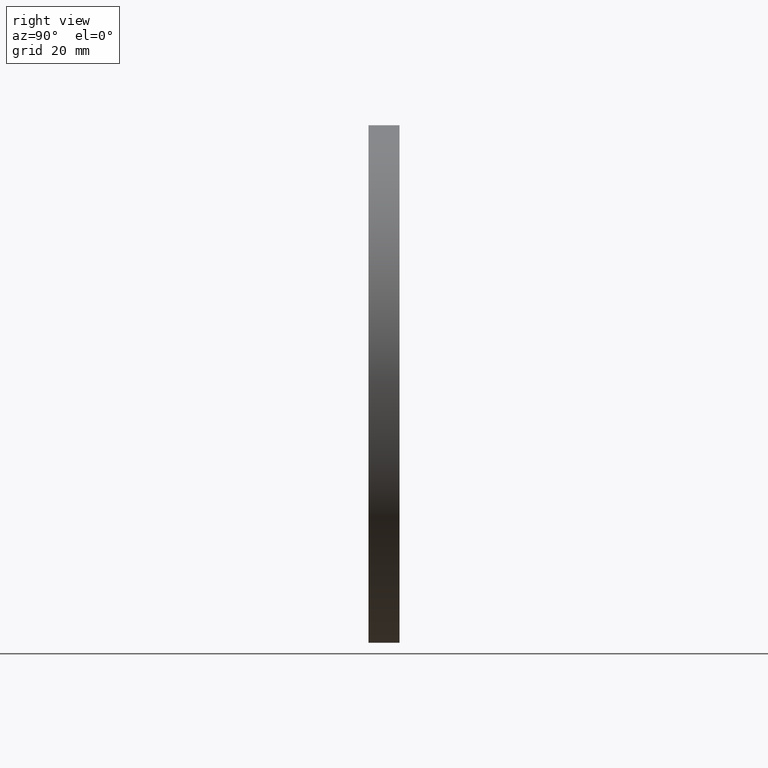
[diagram: clean part render]
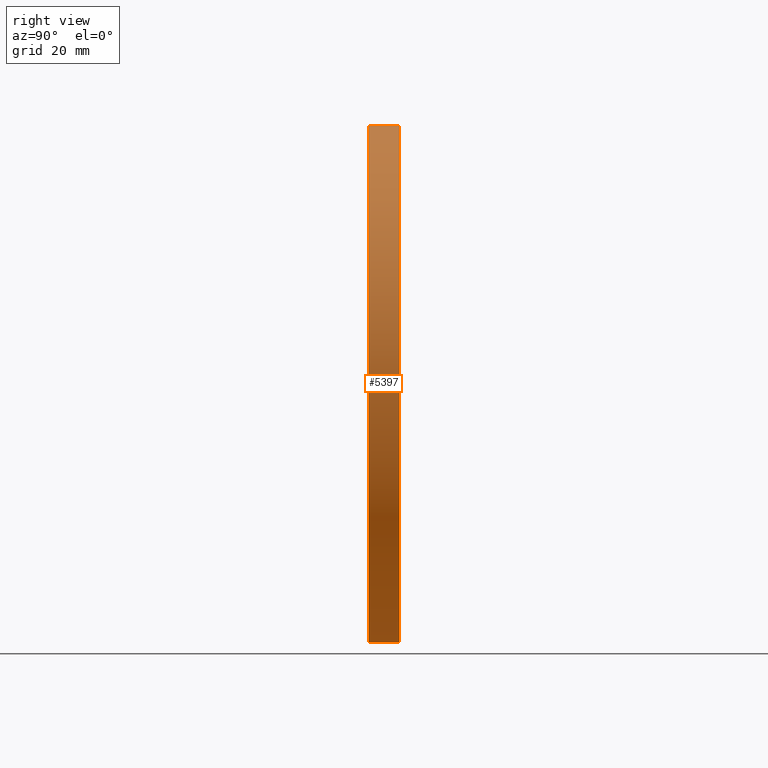
[diagram: same view with one face highlighted and labeled with its STEP entity id]
A machine part, right view. The second image highlights one B-rep face of the part: STEP entity #5397.
In plain terms, the highlighted cylindrical surface (partial cylindrical patch) has radius 50 mm, axis along (-0, -1, -0).
Its self-contained STEP definition (entity closure, byte-faithful):
#68 = FACE_OUTER_BOUND ( 'NONE', #12903, .T. ) ;
#187 = CIRCLE ( 'NONE', #6155, 50.00000000000000000 ) ;
#240 = CARTESIAN_POINT ( 'NONE',  ( 0.000000000000000000, 6.000000000000000000, 0.000000000000000000 ) ) ;
#418 = EDGE_CURVE ( 'NONE', #2755, #1306, #6397, .T. ) ;
#425 = DIRECTION ( 'NONE',  ( 0.000000000000000000, 1.000000000000000000, 0.000000000000000000 ) ) ;
#801 = EDGE_CURVE ( 'NONE', #5491, #13018, #8945, .T. ) ;
#1263 = EDGE_CURVE ( 'NONE', #1306, #13018, #10568, .T. ) ;
#1306 = VERTEX_POINT ( 'NONE', #8416 ) ;
#1596 = VECTOR ( 'NONE', #5514, 1000.000000000000000 ) ;
#1839 = CARTESIAN_POINT ( 'NONE',  ( 0.000000000000000000, 6.000000000000000000, -50.00000000000000000 ) ) ;
#2583 = AXIS2_PLACEMENT_3D ( 'NONE', #7387, #10613, #5489 ) ;
#2755 = VERTEX_POINT ( 'NONE', #12633 ) ;
#3426 = CARTESIAN_POINT ( 'NONE',  ( 0.000000000000000000, 0.000000000000000000, -50.00000000000000000 ) ) ;
#4560 = CARTESIAN_POINT ( 'NONE',  ( 0.000000000000000000, 6.000000000000000000, -50.00000000000000000 ) ) ;
#4958 = DIRECTION ( 'NONE',  ( -0.000000000000000000, -1.000000000000000000, -0.000000000000000000 ) ) ;
#5084 = ORIENTED_EDGE ( 'NONE', *, *, #418, .T. ) ;
#5397 = ADVANCED_FACE ( 'NONE', ( #68 ), #12733, .T. ) ;
#5489 = DIRECTION ( 'NONE',  ( 0.000000000000000000, 0.000000000000000000, 1.000000000000000000 ) ) ;
#5491 = VERTEX_POINT ( 'NONE', #4560 ) ;
#5514 = DIRECTION ( 'NONE',  ( -0.000000000000000000, -1.000000000000000000, -0.000000000000000000 ) ) ;
#5522 = ORIENTED_EDGE ( 'NONE', *, *, #801, .F. ) ;
#6155 = AXIS2_PLACEMENT_3D ( 'NONE', #6535, #425, #11698 ) ;
#6397 = LINE ( 'NONE', #11590, #1596 ) ;
#6535 = CARTESIAN_POINT ( 'NONE',  ( 0.000000000000000000, 6.000000000000000000, 0.000000000000000000 ) ) ;
#7387 = CARTESIAN_POINT ( 'NONE',  ( 0.000000000000000000, 0.000000000000000000, 0.000000000000000000 ) ) ;
#8142 = VECTOR ( 'NONE', #4958, 1000.000000000000000 ) ;
#8416 = CARTESIAN_POINT ( 'NONE',  ( 6.123233995736766085E-15, 0.000000000000000000, 50.00000000000000000 ) ) ;
#8740 = ORIENTED_EDGE ( 'NONE', *, *, #12424, .F. ) ;
#8945 = LINE ( 'NONE', #1839, #8142 ) ;
#9104 = AXIS2_PLACEMENT_3D ( 'NONE', #240, #12425, #11565 ) ;
#10568 = CIRCLE ( 'NONE', #2583, 50.00000000000000000 ) ;
#10613 = DIRECTION ( 'NONE',  ( 0.000000000000000000, 1.000000000000000000, 0.000000000000000000 ) ) ;
#10916 = ORIENTED_EDGE ( 'NONE', *, *, #1263, .T. ) ;
#11565 = DIRECTION ( 'NONE',  ( 0.000000000000000000, 0.000000000000000000, -1.000000000000000000 ) ) ;
#11590 = CARTESIAN_POINT ( 'NONE',  ( 6.123233995736766085E-15, 6.000000000000000000, 50.00000000000000000 ) ) ;
#11698 = DIRECTION ( 'NONE',  ( 0.000000000000000000, 0.000000000000000000, 1.000000000000000000 ) ) ;
#12424 = EDGE_CURVE ( 'NONE', #2755, #5491, #187, .T. ) ;
#12425 = DIRECTION ( 'NONE',  ( -0.000000000000000000, -1.000000000000000000, -0.000000000000000000 ) ) ;
#12633 = CARTESIAN_POINT ( 'NONE',  ( 6.123233995736766085E-15, 6.000000000000000000, 50.00000000000000000 ) ) ;
#12733 = CYLINDRICAL_SURFACE ( 'NONE', #9104, 50.00000000000000000 ) ;
#12903 = EDGE_LOOP ( 'NONE', ( #8740, #5084, #10916, #5522 ) ) ;
#13018 = VERTEX_POINT ( 'NONE', #3426 ) ;